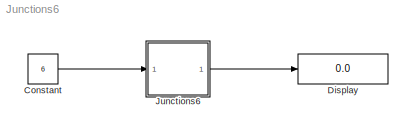
MODEL Junctions6
KIND model
CONFIG AbsTol = auto
CONFIG FixedStep = auto
CONFIG MaxStep = auto
CONFIG MinStep = auto
CONFIG RelTol = 1e-3
CONFIG Solver = ode45
CONFIG SolverMode = Auto
CONFIG StartTime = 0.0
CONFIG StopTime = 10.0
BLOCK [Constant] Constant
  Value = 6
BLOCK [Display] Display
  Decimation = 1
  Format = long
  Ports = [1]
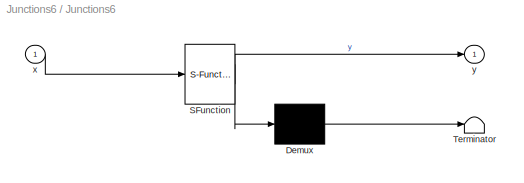
BLOCK [SubSystem] Junctions6
  MaskDescription = Stateflow diagram
  MaskDisplay = plot(sf('Private','sfblk','xIcon'),sf('Private','sfblk','yIcon'));text(0.5,0,sf('Private', 'sfblk', 'tIcon'),'HorizontalAl','Center','VerticalAl','Bottom');
  MaskIconFrame = off
  MaskIconOpaque = off
  MaskIconRotate = none
  MaskIconUnits = autoscale
  MaskSelfModifiable = on
  MaskType = Stateflow
  Ports = [1, 1]
  TreatAsAtomicUnit = off
BLOCK [Demux] Junctions6/ Demux 
  Outputs = 1
  Ports = [1, 1]
BLOCK [S-Function] Junctions6/ SFunction 
  FunctionName = sf_sfun
  PortCounts = [1 2]
  Ports = [1, 2]
  Tag = Stateflow S-Function Junctions6 1
BLOCK [Terminator] Junctions6/ Terminator 
BLOCK [Inport] Junctions6/x
  PortDimensions = 1
BLOCK [Outport] Junctions6/y
LINE Constant:1 -> Junctions6:1
LINE Junctions6/ Demux :1 -> Junctions6/ Terminator :1
LINE Junctions6/ SFunction :1 -> Junctions6/ Demux :1
LINE Junctions6/ SFunction :2 -> Junctions6/y:1
LINE Junctions6/x:1 -> Junctions6/ SFunction :1
LINE Junctions6:1 -> Display:1
CHART Junctions6 states=5 transitions=9
  STATE_LABEL 'A'
  STATE_LABEL 'B'
  STATE_LABEL 'C'
  STATE_LABEL 'D'
  STATE_LABEL 'TOP'
